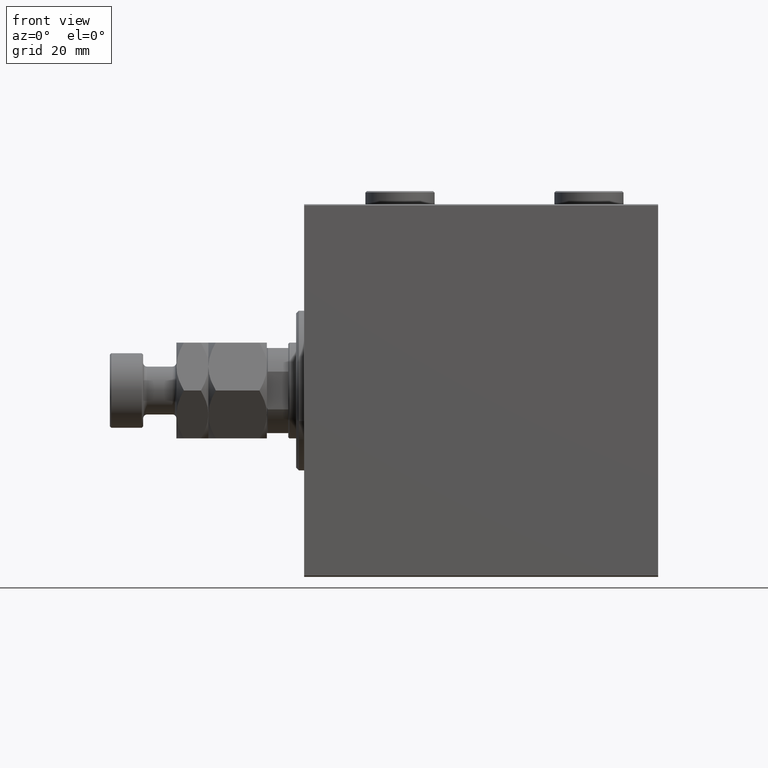
[diagram: clean part render]
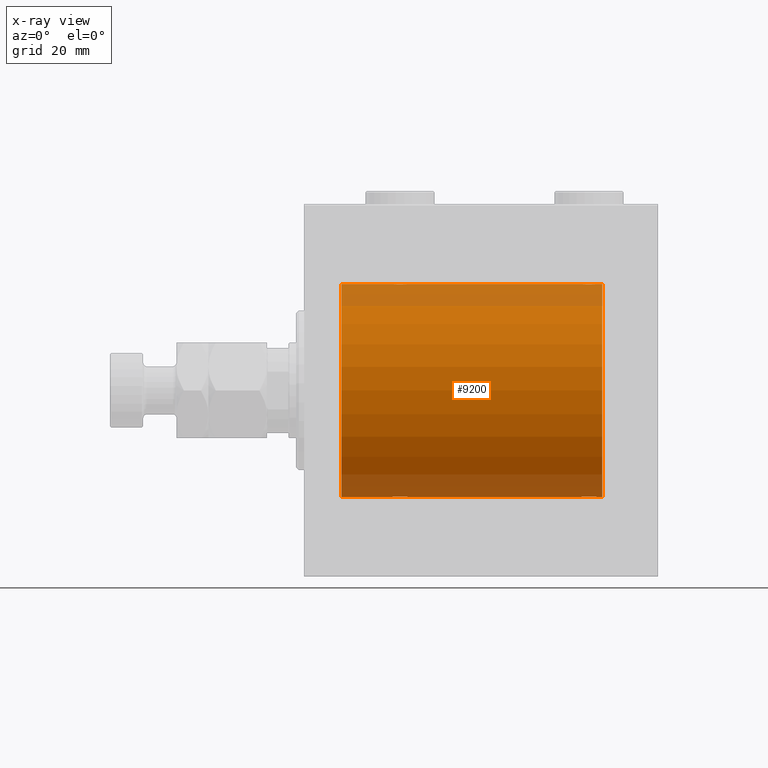
[diagram: x-ray — body ghosted, one internal face saturated and labeled with its STEP entity id]
A machine part, front view, then the same camera in x-ray: the body is ghosted and one INTERNAL B-rep face — a face not visible from any outside direction — is saturated and labeled: STEP entity #9200.
In plain terms, the highlighted cylindrical surface (partial cylindrical patch) has radius 40 mm, axis along (-1, -0, -0).
Its self-contained STEP definition (entity closure, byte-faithful):
#39 = CARTESIAN_POINT ( 'NONE',  ( 108.9813627951423456, -2.261082456166716881, 39.93628274425758207 ) ) ;
#166 = CARTESIAN_POINT ( 'NONE',  ( 33.07973825008353685, -0.7903958539027335917, -39.99381900068937057 ) ) ;
#225 = ORIENTED_EDGE ( 'NONE', *, *, #19719, .T. ) ;
#269 = CARTESIAN_POINT ( 'NONE',  ( 107.3910969250933505, -2.980812880639910123, 39.88879797994688658 ) ) ;
#374 = CARTESIAN_POINT ( 'NONE',  ( 33.73902383005257377, -1.981471132463168638, 39.95113231465138881 ) ) ;
#501 = CARTESIAN_POINT ( 'NONE',  ( 110.0000000000000142, 4.898587181754971267E-15, -40.00000000000000000 ) ) ;
#741 = CARTESIAN_POINT ( 'NONE',  ( 106.2254432117366036, -2.904869018727219920, -39.89440043036668726 ) ) ;
#787 = CARTESIAN_POINT ( 'NONE',  ( 112.0000000000000000, 0.000000000000000000, 0.000000000000000000 ) ) ;
#801 = ORIENTED_EDGE ( 'NONE', *, *, #37138, .T. ) ;
#961 = CARTESIAN_POINT ( 'NONE',  ( 109.6043359991208632, -1.502129635934003504, -39.97212271185185273 ) ) ;
#1196 = CARTESIAN_POINT ( 'NONE',  ( 109.9042517365135296, -0.7773146824710993608, -39.99291453282344122 ) ) ;
#1434 = CARTESIAN_POINT ( 'NONE',  ( 108.8304482282240286, -2.384933850258111221, -39.92898715513240404 ) ) ;
#1539 = CARTESIAN_POINT ( 'NONE',  ( 38.69537007708435539, -1.331594428131646080, 39.97823692017209396 ) ) ;
#1719 = DIRECTION ( 'NONE',  ( -1.000000000000000000, 0.000000000000000000, 0.000000000000000000 ) ) ;
#2027 = CARTESIAN_POINT ( 'NONE',  ( 110.0000000000000142, -2.794909241144302331E-15, 40.00000000000000000 ) ) ;
#2405 = LINE ( 'NONE', #9532, #5701 ) ;
#2439 = DIRECTION ( 'NONE',  ( -1.000000000000000000, -0.000000000000000000, -0.000000000000000000 ) ) ;
#2489 = DIRECTION ( 'NONE',  ( -1.000000000000000000, -0.000000000000000000, -0.000000000000000000 ) ) ;
#3065 = CARTESIAN_POINT ( 'NONE',  ( 35.79958713980801832, -2.999840380514748883, 39.88735335562824247 ) ) ;
#3138 = CARTESIAN_POINT ( 'NONE',  ( 106.2213047658425893, -2.903766417398247590, 39.89448096967571189 ) ) ;
#3159 = CARTESIAN_POINT ( 'NONE',  ( 104.0000000000000142, -1.483492375313373751E-23, 40.00000000000000000 ) ) ;
#3263 = CARTESIAN_POINT ( 'NONE',  ( 35.03510674146485115, -2.847401743820447084, -39.89859630624608400 ) ) ;
#3490 = CARTESIAN_POINT ( 'NONE',  ( 39.00000000000000000, 4.898587181755365697E-15, -40.00000000000000000 ) ) ;
#3766 = ORIENTED_EDGE ( 'NONE', *, *, #17255, .F. ) ;
#3908 = VERTEX_POINT ( 'NONE', #3159 ) ;
#3962 = CARTESIAN_POINT ( 'NONE',  ( 37.33224268865864559, -2.695129988695730727, -39.90917164320281074 ) ) ;
#4641 = CARTESIAN_POINT ( 'NONE',  ( 32.99999999999997158, -0.1957844162750553285, 40.00000000000000000 ) ) ;
#5386 = ORIENTED_EDGE ( 'NONE', *, *, #17994, .T. ) ;
#5482 = CARTESIAN_POINT ( 'NONE',  ( 112.0000000000000000, 4.898587196589413026E-15, -40.00000000000000000 ) ) ;
#5541 = VECTOR ( 'NONE', #2439, 1000.000000000000000 ) ;
#5701 = VECTOR ( 'NONE', #31201, 1000.000000000000000 ) ;
#5796 = LINE ( 'NONE', #10060, #23768 ) ;
#6203 = CARTESIAN_POINT ( 'NONE',  ( 32.99999999999999289, -1.483452932268112700E-23, 40.00000000000000000 ) ) ;
#6495 = ORIENTED_EDGE ( 'NONE', *, *, #33279, .T. ) ;
#6529 = CARTESIAN_POINT ( 'NONE',  ( 112.0000000000000000, 0.000000000000000000, 40.00000000000000000 ) ) ;
#6536 = LINE ( 'NONE', #35090, #13498 ) ;
#6630 = CARTESIAN_POINT ( 'NONE',  ( 33.01898122889073051, -0.3904143323715975056, 39.99856256910221219 ) ) ;
#6706 = CARTESIAN_POINT ( 'NONE',  ( 106.7995871398080254, -2.999840380514755100, 39.88735335562824957 ) ) ;
#6828 = CARTESIAN_POINT ( 'NONE',  ( 37.83044822822401443, -2.384933850258097010, -39.92898715513240404 ) ) ;
#7170 = CARTESIAN_POINT ( 'NONE',  ( 105.6677573113413615, -2.695129988695747603, 39.90917164320281785 ) ) ;
#7296 = CARTESIAN_POINT ( 'NONE',  ( 34.49911531595964220, -2.604941918888299401, -39.91523680494982784 ) ) ;
#7366 = VERTEX_POINT ( 'NONE', #2027 ) ;
#7512 = CARTESIAN_POINT ( 'NONE',  ( 37.50088468404035069, -2.604941918888315833, 39.91523680494983495 ) ) ;
#7633 = CARTESIAN_POINT ( 'NONE',  ( 107.2004128601920030, -2.999840380514741334, -39.88735335562824957 ) ) ;
#7710 = EDGE_LOOP ( 'NONE', ( #21194, #801, #44227, #15271, #225, #23828, #6495, #21084, #5386, #36694, #18577, #3766 ) ) ;
#7766 = CARTESIAN_POINT ( 'NONE',  ( 35.80439468926913094, -3.000157693440628659, -39.88732948994960736 ) ) ;
#7865 = CARTESIAN_POINT ( 'NONE',  ( 108.3322426886586669, -2.695129988695733836, -39.90917164320281785 ) ) ;
#7970 = CARTESIAN_POINT ( 'NONE',  ( 34.66775731134134020, -2.695129988695739609, 39.90917164320281074 ) ) ;
#8094 = CARTESIAN_POINT ( 'NONE',  ( 105.0186372048576970, -2.261082456166704446, -39.93628274425758917 ) ) ;
#8333 = CARTESIAN_POINT ( 'NONE',  ( 109.2609761699474404, -1.981471132463168638, -39.95113231465138881 ) ) ;
#8558 = CARTESIAN_POINT ( 'NONE',  ( 105.1730981536759089, -2.387636253591818747, -39.92882473497732576 ) ) ;
#8661 = VERTEX_POINT ( 'NONE', #6203 ) ;
#9133 = CARTESIAN_POINT ( 'NONE',  ( 38.92026174991646315, -0.7903958539027399199, 39.99381900068935636 ) ) ;
#9200 = ADVANCED_FACE ( 'NONE', ( #30790 ), #20543, .F. ) ;
#9532 = CARTESIAN_POINT ( 'NONE',  ( 112.0000000000000000, 4.898587196589413026E-15, -40.00000000000000000 ) ) ;
#10019 = CARTESIAN_POINT ( 'NONE',  ( 104.1533472698686182, -0.9668189122103458821, 39.98872185468384544 ) ) ;
#10060 = CARTESIAN_POINT ( 'NONE',  ( 112.0000000000000000, 0.000000000000000000, 40.00000000000000000 ) ) ;
#10723 = CARTESIAN_POINT ( 'NONE',  ( 106.6047751654642468, -2.980272303779561316, 39.88883864243167920 ) ) ;
#10771 = CARTESIAN_POINT ( 'NONE',  ( 39.00000000000000000, -1.886242593979369380E-15, 40.00000000000000000 ) ) ;
#10844 = CARTESIAN_POINT ( 'NONE',  ( 36.20041286019198168, -2.999840380514733340, -39.88735335562824957 ) ) ;
#11058 = CARTESIAN_POINT ( 'NONE',  ( 37.32853644746295885, -2.696981015661930936, 39.90904630908465833 ) ) ;
#11080 = CARTESIAN_POINT ( 'NONE',  ( 33.61748319088536618, -1.833695109615709917, -39.95828327492364451 ) ) ;
#11189 = CARTESIAN_POINT ( 'NONE',  ( 110.0000000000000142, -2.794909241144302331E-15, 40.00000000000000000 ) ) ;
#11241 = AXIS2_PLACEMENT_3D ( 'NONE', #16963, #31498, #13396 ) ;
#11321 = CARTESIAN_POINT ( 'NONE',  ( 38.69721340580881019, -1.327859336864143147, -39.97836169682018692 ) ) ;
#11425 = CARTESIAN_POINT ( 'NONE',  ( 104.0797382500835369, -0.7903958539027354790, -39.99381900068937057 ) ) ;
#11654 = CARTESIAN_POINT ( 'NONE',  ( 109.9810187711093050, -0.3904143323715937308, -39.99856256910221219 ) ) ;
#11672 = EDGE_CURVE ( 'NONE', #19597, #27222, #35547, .T. ) ;
#11759 = CARTESIAN_POINT ( 'NONE',  ( 35.22130476584258219, -2.903766417398241373, 39.89448096967571189 ) ) ;
#12086 = VECTOR ( 'NONE', #17682, 1000.000000000000000 ) ;
#12225 = CARTESIAN_POINT ( 'NONE',  ( 38.60188728128492386, -1.506322235190783232, 39.97196309111974699 ) ) ;
#12230 = CARTESIAN_POINT ( 'NONE',  ( 104.0957482634864846, -0.7773146824711071323, 39.99291453282344833 ) ) ;
#12992 = EDGE_CURVE ( 'NONE', #24663, #35703, #19426, .T. ) ;
#13396 = DIRECTION ( 'NONE',  ( 0.000000000000000000, 0.000000000000000000, 1.000000000000000000 ) ) ;
#13498 = VECTOR ( 'NONE', #2489, 1000.000000000000000 ) ;
#13595 = B_SPLINE_CURVE_WITH_KNOTS ( 'NONE', 3,
 ( #3490, #18233, #18465, #39432, #32525, #11321, #21568, #25851, #14882, #36327, #6828, #39651, #3962, #25377, #32760, #21792, #10844, #7766, #39885, #40351, #3263, #46793, #7296, #15125, #43681, #22270, #11080, #29410, #36796, #166, #21335, #36091 ),
 .UNSPECIFIED., .F., .F.,
 ( 4, 2, 2, 2, 2, 2, 2, 2, 2, 2, 2, 2, 2, 2, 2, 4 ),
 ( 0.009382660366305113978, 0.009968941372944149781, 0.01055522237958318559, 0.01114150338622222139, 0.01172778439286125719, 0.01231406539950029300, 0.01290034640613932707, 0.01348662741277836287, 0.01407290841941739867, 0.01465918942605643448, 0.01524547043269547028, 0.01583175143933450435, 0.01641803244597354189, 0.01700431345261257943, 0.01759059445925161697, 0.01876315647252968857 ),
 .UNSPECIFIED. ) ;
#13694 = VERTEX_POINT ( 'NONE', #6529 ) ;
#13982 = VERTEX_POINT ( 'NONE', #5482 ) ;
#13991 = CARTESIAN_POINT ( 'NONE',  ( 33.39566400087915810, -1.502129635934004170, 39.97212271185186694 ) ) ;
#14335 = CARTESIAN_POINT ( 'NONE',  ( 112.0000000000000000, 4.898587196589413026E-15, -40.00000000000000000 ) ) ;
#14882 = CARTESIAN_POINT ( 'NONE',  ( 38.26097616994741912, -1.981471132463159535, -39.95113231465138881 ) ) ;
#14992 = CARTESIAN_POINT ( 'NONE',  ( 104.6174831908853804, -1.833695109615715690, -39.95828327492363741 ) ) ;
#14995 = CARTESIAN_POINT ( 'NONE',  ( 104.6149239908464921, -1.830402106103529380, 39.95843610133493229 ) ) ;
#15018 = B_SPLINE_CURVE_WITH_KNOTS ( 'NONE', 3,
 ( #24713, #4641, #6630, #29851, #32967, #22007, #13991, #39227, #374, #46596, #17566, #26059, #7970, #44358, #11759, #26287, #3065, #32097, #28509, #43658, #29385, #11058, #7512, #36539, #43894, #23662, #41495, #12225, #1539, #9133, #41972, #26526 ),
 .UNSPECIFIED., .F., .F.,
 ( 4, 2, 2, 2, 2, 2, 2, 2, 2, 2, 2, 2, 2, 2, 2, 4 ),
 ( 0.009382660366305081018, 0.009968941372944116822, 0.01055522237958315263, 0.01114150338622219016, 0.01172778439286122597, 0.01231406539950026177, 0.01290034640613929931, 0.01348662741277833511, 0.01407290841941737092, 0.01465918942605640846, 0.01524547043269544253, 0.01583175143933448006, 0.01641803244597351413, 0.01700431345261255167, 0.01759059445925158921, 0.01876315647252966082 ),
 .UNSPECIFIED. ) ;
#15125 = CARTESIAN_POINT ( 'NONE',  ( 34.17309815367587333, -2.387636253591803648, -39.92882473497732576 ) ) ;
#15271 = ORIENTED_EDGE ( 'NONE', *, *, #34988, .T. ) ;
#15458 = CARTESIAN_POINT ( 'NONE',  ( 107.3952248345357390, -2.980272303779549325, -39.88883864243167920 ) ) ;
#15932 = CARTESIAN_POINT ( 'NONE',  ( 109.3850760091535506, -1.830402106103516058, -39.95843610133493229 ) ) ;
#16963 = CARTESIAN_POINT ( 'NONE',  ( 112.0000000000000000, 0.000000000000000000, 0.000000000000000000 ) ) ;
#17255 = EDGE_CURVE ( 'NONE', #13694, #7366, #5796, .T. ) ;
#17566 = CARTESIAN_POINT ( 'NONE',  ( 34.16955177177597847, -2.384933850258108556, 39.92898715513240404 ) ) ;
#17638 = CARTESIAN_POINT ( 'NONE',  ( 107.9648932585351417, -2.847401743820471065, 39.89859630624608400 ) ) ;
#17682 = DIRECTION ( 'NONE',  ( -1.000000000000000000, -0.000000000000000000, -0.000000000000000000 ) ) ;
#17869 = CARTESIAN_POINT ( 'NONE',  ( 107.7745567882634248, -2.904869018727233687, 39.89440043036668726 ) ) ;
#17994 = EDGE_CURVE ( 'NONE', #8661, #35358, #15018, .T. ) ;
#18233 = CARTESIAN_POINT ( 'NONE',  ( 39.00000000000000000, -0.1957844162750501937, -39.99999999999999289 ) ) ;
#18337 = CARTESIAN_POINT ( 'NONE',  ( 108.3285364474629660, -2.696981015661940262, 39.90904630908467254 ) ) ;
#18465 = CARTESIAN_POINT ( 'NONE',  ( 38.98101877110926239, -0.3904143323715922875, -39.99856256910221219 ) ) ;
#18577 = ORIENTED_EDGE ( 'NONE', *, *, #21553, .T. ) ;
#18803 = CARTESIAN_POINT ( 'NONE',  ( 104.7417032967949950, -1.984537326394304468, -39.95097977400578060 ) ) ;
#19037 = CARTESIAN_POINT ( 'NONE',  ( 105.4991153159596564, -2.604941918888313612, -39.91523680494982784 ) ) ;
#19089 = DIRECTION ( 'NONE',  ( 0.000000000000000000, 0.000000000000000000, 1.000000000000000000 ) ) ;
#19349 = AXIS2_PLACEMENT_3D ( 'NONE', #21932, #36218, #40249 ) ;
#19417 = AXIS2_PLACEMENT_3D ( 'NONE', #787, #1719, #19089 ) ;
#19426 = B_SPLINE_CURVE_WITH_KNOTS ( 'NONE', 3,
 ( #501, #26649, #11654, #1196, #30215, #25956, #961, #15932, #8333, #40454, #1434, #33792, #7865, #44955, #26184, #15458, #7633, #40690, #41153, #741, #36663, #29979, #19037, #8558, #8094, #18803, #14992, #22139, #33334, #11425, #19498, #23078 ),
 .UNSPECIFIED., .F., .F.,
 ( 4, 2, 2, 2, 2, 2, 2, 2, 2, 2, 2, 2, 2, 2, 2, 4 ),
 ( 0.009382660366305127855, 0.009968941372944165394, 0.01055522237958320120, 0.01114150338622223874, 0.01172778439286127627, 0.01231406539950031381, 0.01290034640613934962, 0.01348662741277838716, 0.01407290841941742296, 0.01465918942605646050, 0.01524547043269549804, 0.01583175143933453557, 0.01641803244597356964, 0.01700431345261260718, 0.01759059445925164472, 0.01876315647252971980 ),
 .UNSPECIFIED. ) ;
#19498 = CARTESIAN_POINT ( 'NONE',  ( 104.0000000000000284, -0.3964922677423631803, -40.00000000000000000 ) ) ;
#19597 = VERTEX_POINT ( 'NONE', #45144 ) ;
#19719 = EDGE_CURVE ( 'NONE', #24264, #19597, #13595, .T. ) ;
#20102 = CARTESIAN_POINT ( 'NONE',  ( 112.0000000000000000, 4.898587196589413026E-15, -40.00000000000000000 ) ) ;
#20543 = CYLINDRICAL_SURFACE ( 'NONE', #11241, 40.00000000000000000 ) ;
#21084 = ORIENTED_EDGE ( 'NONE', *, *, #44854, .F. ) ;
#21194 = ORIENTED_EDGE ( 'NONE', *, *, #35408, .F. ) ;
#21210 = CARTESIAN_POINT ( 'NONE',  ( 107.1956053107308406, -3.000157693440651752, 39.88732948994960026 ) ) ;
#21335 = CARTESIAN_POINT ( 'NONE',  ( 33.00000000000000000, -0.3964922677423601272, -40.00000000000001421 ) ) ;
#21553 = EDGE_CURVE ( 'NONE', #3908, #7366, #38962, .T. ) ;
#21568 = CARTESIAN_POINT ( 'NONE',  ( 38.60433599912082769, -1.502129635933996621, -39.97212271185184562 ) ) ;
#21792 = CARTESIAN_POINT ( 'NONE',  ( 36.39522483453575319, -2.980272303779539556, -39.88883864243169342 ) ) ;
#21903 = CARTESIAN_POINT ( 'NONE',  ( 109.2582967032050192, -1.984537326394317569, 39.95097977400578060 ) ) ;
#21932 = CARTESIAN_POINT ( 'NONE',  ( 13.99999999999999822, 0.000000000000000000, 0.000000000000000000 ) ) ;
#22007 = CARTESIAN_POINT ( 'NONE',  ( 33.30278659419118270, -1.327859336864149586, 39.97836169682017982 ) ) ;
#22139 = CARTESIAN_POINT ( 'NONE',  ( 104.3981127187150832, -1.506322235190780345, -39.97196309111975410 ) ) ;
#22270 = CARTESIAN_POINT ( 'NONE',  ( 33.74170329679496660, -1.984537326394296253, -39.95097977400577349 ) ) ;
#22375 = CARTESIAN_POINT ( 'NONE',  ( 104.0000000000000142, 4.637093495725619447E-15, -40.00000000000000000 ) ) ;
#22410 = CIRCLE ( 'NONE', #19349, 40.00000000000000000 ) ;
#23078 = CARTESIAN_POINT ( 'NONE',  ( 104.0000000000000142, 4.637093495725619447E-15, -40.00000000000000000 ) ) ;
#23432 = EDGE_CURVE ( 'NONE', #3908, #35358, #30766, .T. ) ;
#23662 = CARTESIAN_POINT ( 'NONE',  ( 38.25829670320501918, -1.984537326394312462, 39.95097977400578060 ) ) ;
#23768 = VECTOR ( 'NONE', #28620, 1000.000000000000000 ) ;
#23828 = ORIENTED_EDGE ( 'NONE', *, *, #11672, .T. ) ;
#24208 = CARTESIAN_POINT ( 'NONE',  ( 13.99999999999999822, 4.898587196589413026E-15, -40.00000000000000000 ) ) ;
#24264 = VERTEX_POINT ( 'NONE', #45644 ) ;
#24663 = VERTEX_POINT ( 'NONE', #30490 ) ;
#24713 = CARTESIAN_POINT ( 'NONE',  ( 32.99999999999999289, -1.483452932268112700E-23, 40.00000000000000000 ) ) ;
#25250 = CARTESIAN_POINT ( 'NONE',  ( 110.0000000000000000, -0.3964922677423690645, 40.00000000000000000 ) ) ;
#25377 = CARTESIAN_POINT ( 'NONE',  ( 36.96938341894464486, -2.845855236045336412, -39.89870693240652599 ) ) ;
#25479 = CARTESIAN_POINT ( 'NONE',  ( 105.1695517717759998, -2.384933850258125876, 39.92898715513240404 ) ) ;
#25722 = CARTESIAN_POINT ( 'NONE',  ( 109.9202617499164916, -0.7903958539027468033, 39.99381900068937057 ) ) ;
#25851 = CARTESIAN_POINT ( 'NONE',  ( 38.38507600915352924, -1.830402106103509174, -39.95843610133493229 ) ) ;
#25956 = CARTESIAN_POINT ( 'NONE',  ( 109.6972134058088386, -1.327859336864146700, -39.97836169682017982 ) ) ;
#26059 = CARTESIAN_POINT ( 'NONE',  ( 34.49556917086532337, -2.602909538701755565, 39.91537030566259148 ) ) ;
#26184 = CARTESIAN_POINT ( 'NONE',  ( 107.7786952341574249, -2.903766417398237820, -39.89448096967571189 ) ) ;
#26287 = CARTESIAN_POINT ( 'NONE',  ( 35.60477516546423260, -2.980272303779554655, 39.88883864243167920 ) ) ;
#26526 = CARTESIAN_POINT ( 'NONE',  ( 39.00000000000000000, -1.886242593979369380E-15, 40.00000000000000000 ) ) ;
#26649 = CARTESIAN_POINT ( 'NONE',  ( 110.0000000000000284, -0.1957844162750512762, -39.99999999999999289 ) ) ;
#26763 = CARTESIAN_POINT ( 'NONE',  ( 104.3027865941912182, -1.327859336864157358, 39.97836169682016561 ) ) ;
#27222 = VERTEX_POINT ( 'NONE', #24208 ) ;
#28122 = CARTESIAN_POINT ( 'NONE',  ( 104.0000000000000142, -1.483492375313373751E-23, 40.00000000000000000 ) ) ;
#28509 = CARTESIAN_POINT ( 'NONE',  ( 36.39109692509333627, -2.980812880639903906, 39.88879797994688658 ) ) ;
#28577 = CARTESIAN_POINT ( 'NONE',  ( 109.3825168091146622, -1.833695109615728125, 39.95828327492363741 ) ) ;
#28620 = DIRECTION ( 'NONE',  ( -1.000000000000000000, -0.000000000000000000, -0.000000000000000000 ) ) ;
#29282 = CARTESIAN_POINT ( 'NONE',  ( 106.0306165810553409, -2.845855236045354619, 39.89870693240651178 ) ) ;
#29385 = CARTESIAN_POINT ( 'NONE',  ( 36.96489325853514174, -2.847401743820462183, 39.89859630624607689 ) ) ;
#29410 = CARTESIAN_POINT ( 'NONE',  ( 33.39811271871507614, -1.506322235190776127, -39.97196309111974699 ) ) ;
#29523 = CARTESIAN_POINT ( 'NONE',  ( 104.7390238300526022, -1.981471132463181295, 39.95113231465138881 ) ) ;
#29851 = CARTESIAN_POINT ( 'NONE',  ( 33.09574826348647036, -0.7773146824711031355, 39.99291453282343412 ) ) ;
#29979 = CARTESIAN_POINT ( 'NONE',  ( 105.6714635525370483, -2.696981015661927383, -39.90904630908467254 ) ) ;
#30215 = CARTESIAN_POINT ( 'NONE',  ( 109.8466527301314102, -0.9668189122103358901, -39.98872185468385254 ) ) ;
#30490 = CARTESIAN_POINT ( 'NONE',  ( 110.0000000000000142, 4.898587181754971267E-15, -40.00000000000000000 ) ) ;
#30561 = CARTESIAN_POINT ( 'NONE',  ( 104.0189812288907376, -0.3904143323716007807, 39.99856256910221219 ) ) ;
#30766 = LINE ( 'NONE', #31471, #5541 ) ;
#30790 = FACE_OUTER_BOUND ( 'NONE', #7710, .T. ) ;
#31201 = DIRECTION ( 'NONE',  ( -1.000000000000000000, -0.000000000000000000, -0.000000000000000000 ) ) ;
#31471 = CARTESIAN_POINT ( 'NONE',  ( 112.0000000000000000, 0.000000000000000000, 40.00000000000000000 ) ) ;
#31498 = DIRECTION ( 'NONE',  ( -1.000000000000000000, -0.000000000000000000, -0.000000000000000000 ) ) ;
#32097 = CARTESIAN_POINT ( 'NONE',  ( 36.19560531073086196, -3.000157693440645090, 39.88732948994960026 ) ) ;
#32525 = CARTESIAN_POINT ( 'NONE',  ( 38.84665273013138886, -0.9668189122103337807, -39.98872185468385965 ) ) ;
#32760 = CARTESIAN_POINT ( 'NONE',  ( 36.77869523415741781, -2.903766417398227162, -39.89448096967571900 ) ) ;
#32967 = CARTESIAN_POINT ( 'NONE',  ( 33.15334726986859692, -0.9668189122103382216, 39.98872185468385254 ) ) ;
#33279 = EDGE_CURVE ( 'NONE', #27222, #43348, #22410, .T. ) ;
#33334 = CARTESIAN_POINT ( 'NONE',  ( 104.3046299229156233, -1.331594428131639640, -39.97823692017208685 ) ) ;
#33792 = CARTESIAN_POINT ( 'NONE',  ( 108.5044308291346482, -2.602909538701758674, -39.91537030566259148 ) ) ;
#34151 = LINE ( 'NONE', #20102, #41490 ) ;
#34911 = CARTESIAN_POINT ( 'NONE',  ( 13.99999999999999822, 0.000000000000000000, 40.00000000000000000 ) ) ;
#34988 = EDGE_CURVE ( 'NONE', #35703, #24264, #2405, .T. ) ;
#35090 = CARTESIAN_POINT ( 'NONE',  ( 112.0000000000000000, 0.000000000000000000, 40.00000000000000000 ) ) ;
#35358 = VERTEX_POINT ( 'NONE', #10771 ) ;
#35408 = EDGE_CURVE ( 'NONE', #13982, #13694, #38416, .T. ) ;
#35547 = LINE ( 'NONE', #14335, #12086 ) ;
#35703 = VERTEX_POINT ( 'NONE', #22375 ) ;
#35742 = CARTESIAN_POINT ( 'NONE',  ( 108.8269018463241053, -2.387636253591832514, 39.92882473497732576 ) ) ;
#36091 = CARTESIAN_POINT ( 'NONE',  ( 32.99999999999999289, 8.398598542115384856E-15, -40.00000000000000000 ) ) ;
#36193 = CARTESIAN_POINT ( 'NONE',  ( 105.4955691708653518, -2.602909538701771996, 39.91537030566259148 ) ) ;
#36218 = DIRECTION ( 'NONE',  ( -1.000000000000000000, 0.000000000000000000, 0.000000000000000000 ) ) ;
#36327 = CARTESIAN_POINT ( 'NONE',  ( 37.98461447812281477, -2.258217541132894191, -39.93644519243654400 ) ) ;
#36539 = CARTESIAN_POINT ( 'NONE',  ( 37.82690184632411956, -2.387636253591820523, 39.92882473497731866 ) ) ;
#36663 = CARTESIAN_POINT ( 'NONE',  ( 106.0351067414648725, -2.847401743820458631, -39.89859630624608400 ) ) ;
#36694 = ORIENTED_EDGE ( 'NONE', *, *, #23432, .F. ) ;
#36796 = CARTESIAN_POINT ( 'NONE',  ( 33.30462992291564461, -1.331594428131637420, -39.97823692017210817 ) ) ;
#37138 = EDGE_CURVE ( 'NONE', #13982, #24663, #34151, .T. ) ;
#38416 = CIRCLE ( 'NONE', #19417, 40.00000000000000000 ) ;
#38667 = DIRECTION ( 'NONE',  ( -1.000000000000000000, -0.000000000000000000, -0.000000000000000000 ) ) ;
#38962 = B_SPLINE_CURVE_WITH_KNOTS ( 'NONE', 3,
 ( #28122, #42628, #30561, #12230, #10019, #26763, #41268, #14995, #29523, #43784, #25479, #36193, #7170, #29282, #3138, #10723, #6706, #21210, #269, #17869, #17638, #18337, #43089, #35742, #39, #21903, #28577, #43329, #40221, #25722, #25250, #11189 ),
 .UNSPECIFIED., .F., .F.,
 ( 4, 2, 2, 2, 2, 2, 2, 2, 2, 2, 2, 2, 2, 2, 2, 4 ),
 ( 0.009382660366305098365, 0.009968941372944135904, 0.01055522237958317344, 0.01114150338622220925, 0.01172778439286124678, 0.01231406539950028432, 0.01290034640613932013, 0.01348662741277835767, 0.01407290841941739520, 0.01465918942605643274, 0.01524547043269547028, 0.01583175143933450435, 0.01641803244597354189, 0.01700431345261257943, 0.01759059445925161697, 0.01876315647252969204 ),
 .UNSPECIFIED. ) ;
#39227 = CARTESIAN_POINT ( 'NONE',  ( 33.61492399084646365, -1.830402106103518056, 39.95843610133494650 ) ) ;
#39432 = CARTESIAN_POINT ( 'NONE',  ( 38.90425173651352253, -0.7773146824710970293, -39.99291453282343412 ) ) ;
#39651 = CARTESIAN_POINT ( 'NONE',  ( 37.50443082913467663, -2.602909538701744463, -39.91537030566261279 ) ) ;
#39885 = CARTESIAN_POINT ( 'NONE',  ( 35.60890307490667794, -2.980812880639888363, -39.88879797994690080 ) ) ;
#40221 = CARTESIAN_POINT ( 'NONE',  ( 109.6953700770843767, -1.331594428131652963, 39.97823692017208685 ) ) ;
#40249 = DIRECTION ( 'NONE',  ( 0.000000000000000000, 0.000000000000000000, 1.000000000000000000 ) ) ;
#40351 = CARTESIAN_POINT ( 'NONE',  ( 35.22544321173659654, -2.904869018727211483, -39.89440043036668726 ) ) ;
#40454 = CARTESIAN_POINT ( 'NONE',  ( 108.9846144781227935, -2.258217541132904405, -39.93644519243652979 ) ) ;
#40690 = CARTESIAN_POINT ( 'NONE',  ( 106.8043946892691736, -3.000157693440637985, -39.88732948994960026 ) ) ;
#41153 = CARTESIAN_POINT ( 'NONE',  ( 106.6089030749067064, -2.980812880639896356, -39.88879797994688658 ) ) ;
#41268 = CARTESIAN_POINT ( 'NONE',  ( 104.3956640008791794, -1.502129635934016383, 39.97212271185185983 ) ) ;
#41490 = VECTOR ( 'NONE', #38667, 1000.000000000000000 ) ;
#41495 = CARTESIAN_POINT ( 'NONE',  ( 38.38251680911464803, -1.833695109615719021, 39.95828327492363741 ) ) ;
#41972 = CARTESIAN_POINT ( 'NONE',  ( 38.99999999999999289, -0.3964922677423670661, 40.00000000000000711 ) ) ;
#42628 = CARTESIAN_POINT ( 'NONE',  ( 104.0000000000000142, -0.1957844162750575212, 39.99999999999999289 ) ) ;
#43089 = CARTESIAN_POINT ( 'NONE',  ( 108.5008846840403436, -2.604941918888326935, 39.91523680494982784 ) ) ;
#43329 = CARTESIAN_POINT ( 'NONE',  ( 109.6018872812849310, -1.506322235190793668, 39.97196309111975410 ) ) ;
#43348 = VERTEX_POINT ( 'NONE', #34911 ) ;
#43658 = CARTESIAN_POINT ( 'NONE',  ( 36.77455678826341057, -2.904869018727228358, 39.89440043036668015 ) ) ;
#43681 = CARTESIAN_POINT ( 'NONE',  ( 34.01863720485771125, -2.261082456166694676, -39.93628274425758917 ) ) ;
#43784 = CARTESIAN_POINT ( 'NONE',  ( 105.0153855218772065, -2.258217541132916395, 39.93644519243652979 ) ) ;
#43894 = CARTESIAN_POINT ( 'NONE',  ( 37.98136279514229585, -2.261082456166712440, 39.93628274425758207 ) ) ;
#44227 = ORIENTED_EDGE ( 'NONE', *, *, #12992, .T. ) ;
#44358 = CARTESIAN_POINT ( 'NONE',  ( 35.03061658105535514, -2.845855236045346626, 39.89870693240651889 ) ) ;
#44854 = EDGE_CURVE ( 'NONE', #8661, #43348, #6536, .T. ) ;
#44955 = CARTESIAN_POINT ( 'NONE',  ( 107.9693834189446875, -2.845855236045339520, -39.89870693240651178 ) ) ;
#45144 = CARTESIAN_POINT ( 'NONE',  ( 32.99999999999999289, 8.398598542115384856E-15, -40.00000000000000000 ) ) ;
#45644 = CARTESIAN_POINT ( 'NONE',  ( 39.00000000000000000, 4.898587181755365697E-15, -40.00000000000000000 ) ) ;
#46596 = CARTESIAN_POINT ( 'NONE',  ( 34.01538552187719233, -2.258217541132905293, 39.93644519243653690 ) ) ;
#46793 = CARTESIAN_POINT ( 'NONE',  ( 34.67146355253703405, -2.696981015661913172, -39.90904630908467254 ) ) ;